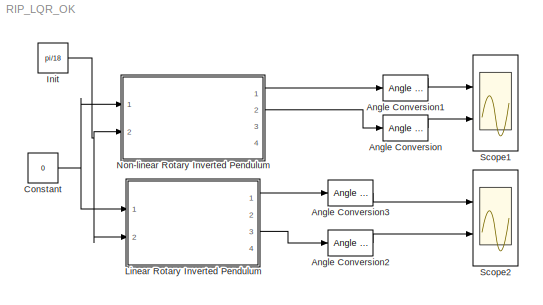
MODEL RIP_LQR_OK
KIND model
CONFIG StopFcn = plot(Data.time, Data.signals(1,1).values,'-r', 'LineWidth', 1.5)\nhold on;\nplot(Data.time, Data.signals(1,2).values,'-b', 'LineWidth',1.5)\ngrid;\nlegend('alpha','theta');\n\nylabel('alpha, theta [deg]');\n
BLOCK [Reference] Angle Conversion  REF=aerolibconvert2/Angle Conversion
  IU = rad
  OU = deg
  Ports = [1, 1]
  SID = 66
  SourceBlock = aerolibconvert2/Angle Conversion
  SourceType = Angle Conversion
BLOCK [Reference] Angle Conversion1  REF=aerolibconvert2/Angle Conversion
  IU = rad
  OU = deg
  Ports = [1, 1]
  SID = 67
  SourceBlock = aerolibconvert2/Angle Conversion
  SourceType = Angle Conversion
BLOCK [Reference] Angle Conversion2  REF=aerolibconvert2/Angle Conversion
  IU = rad
  OU = deg
  Ports = [1, 1]
  SID = 68
  SourceBlock = aerolibconvert2/Angle Conversion
  SourceType = Angle Conversion
BLOCK [Reference] Angle Conversion3  REF=aerolibconvert2/Angle Conversion
  IU = rad
  OU = deg
  Ports = [1, 1]
  SID = 69
  SourceBlock = aerolibconvert2/Angle Conversion
  SourceType = Angle Conversion
BLOCK [Constant] Constant
  SID = 53
  Value = 0
BLOCK [Constant] Init
  SID = 59
  Value = pi/18
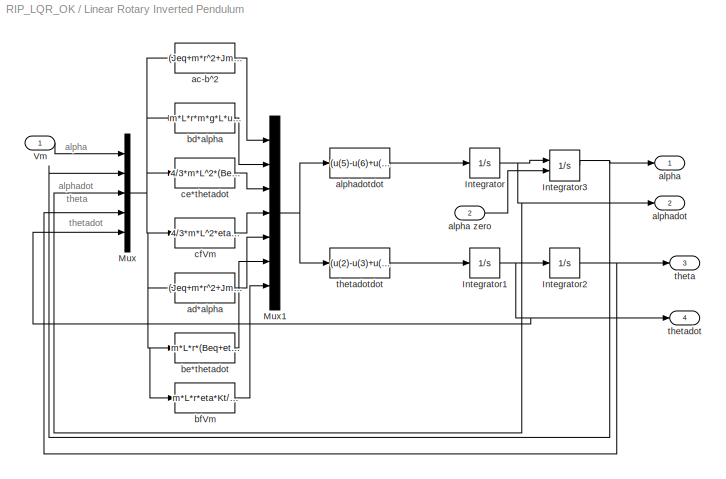
BLOCK [SubSystem] Linear Rotary Inverted Pendulum
  FunctionWithSeparateData = off
  MaskHideContents = off
  MinAlgLoopOccurrences = off
  Opaque = off
  Ports = [2, 4]
  PropExecContextOutsideSubsystem = off
  RTWSystemCode = Auto
  RequestExecContextInheritance = off
  SID = 28
BLOCK [Integrator] Linear Rotary Inverted Pendulum/Integrator
  Ports = [1, 1]
  SID = 39
BLOCK [Integrator] Linear Rotary Inverted Pendulum/Integrator1
  Ports = [1, 1]
  SID = 40
BLOCK [Integrator] Linear Rotary Inverted Pendulum/Integrator2
  Ports = [1, 1]
  SID = 41
BLOCK [Integrator] Linear Rotary Inverted Pendulum/Integrator3
  InitialConditionSource = external
  Ports = [2, 1]
  SID = 42
BLOCK [Mux] Linear Rotary Inverted Pendulum/Mux
  DisplayOption = bar
  Inputs = 5
  Ports = [5, 1]
  SID = 32
BLOCK [Mux] Linear Rotary Inverted Pendulum/Mux1
  DisplayOption = bar
  Inputs = 7
  Ports = [7, 1]
  SID = 43
BLOCK [Inport] Linear Rotary Inverted Pendulum/Vm
  IconDisplay = Port number
  SID = 29
BLOCK [Fcn] Linear Rotary Inverted Pendulum/ac-b^2
  Expr = (Jeq+m*r^2+Jm)*(4/3*m*L^2)-(m*L*r)^2
  SID = 31
BLOCK [Fcn] Linear Rotary Inverted Pendulum/ad*alpha
  Expr = (Jeq+m*r^2+Jm)*m*g*L*u(2)
  SID = 36
BLOCK [Outport] Linear Rotary Inverted Pendulum/alpha
  IconDisplay = Port number
  SID = 30
BLOCK [Inport] Linear Rotary Inverted Pendulum/alpha zero
  IconDisplay = Port number
  Port = 2
  SID = 58
BLOCK [Outport] Linear Rotary Inverted Pendulum/alphadot
  IconDisplay = Port number
  Port = 2
  SID = 46
BLOCK [Fcn] Linear Rotary Inverted Pendulum/alphadotdot
  Expr = (u(5)-u(6)+u(7))/u(1)
  SID = 44
BLOCK [Fcn] Linear Rotary Inverted Pendulum/bd*alpha
  Expr = m*L*r*m*g*L*u(2)
  SID = 33
BLOCK [Fcn] Linear Rotary Inverted Pendulum/be*thetadot
  Expr = m*L*r*(Beq+eta*Kt*Km/Rm)*u(5)
  SID = 37
BLOCK [Fcn] Linear Rotary Inverted Pendulum/bfVm
  Expr = m*L*r*eta*Kt/Rm*u(1)
  SID = 38
BLOCK [Fcn] Linear Rotary Inverted Pendulum/ce*thetadot
  Expr = 4/3*m*L^2*(Beq+eta*Kt*Km/Rm)*u(5)
  SID = 34
BLOCK [Fcn] Linear Rotary Inverted Pendulum/cfVm
  Expr = 4/3*m*L^2*eta*Kt/Rm*u(1)
  SID = 35
BLOCK [Outport] Linear Rotary Inverted Pendulum/theta
  IconDisplay = Port number
  Port = 3
  SID = 47
BLOCK [Outport] Linear Rotary Inverted Pendulum/thetadot
  IconDisplay = Port number
  Port = 4
  SID = 48
BLOCK [Fcn] Linear Rotary Inverted Pendulum/thetadotdot
  Expr = (u(2)-u(3)+u(4))/u(1)
  SID = 45
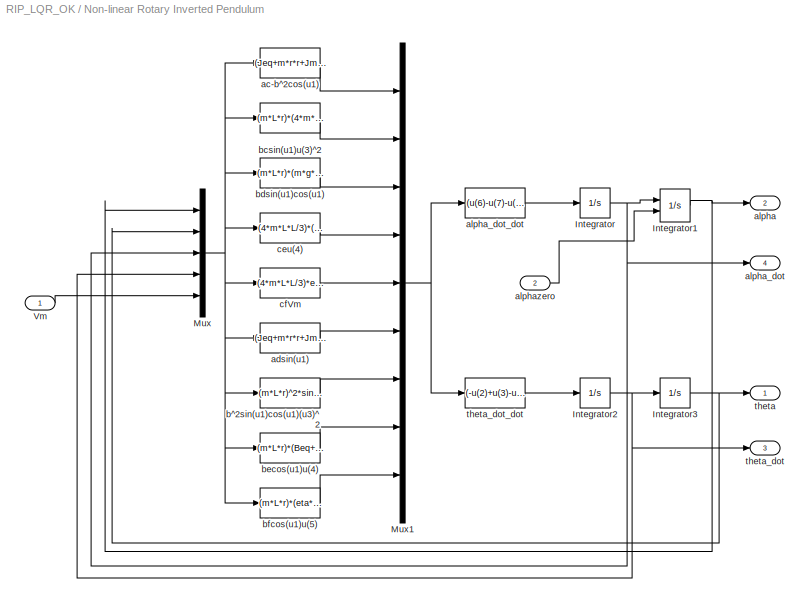
BLOCK [SubSystem] Non-linear Rotary Inverted Pendulum
  FunctionWithSeparateData = off
  MaskHideContents = off
  MinAlgLoopOccurrences = off
  Opaque = off
  Ports = [2, 4]
  PropExecContextOutsideSubsystem = off
  RTWSystemCode = Auto
  RequestExecContextInheritance = off
  SID = 1
BLOCK [Integrator] Non-linear Rotary Inverted Pendulum/Integrator
  LowerSaturationLimit = -pi/18
  Ports = [1, 1]
  SID = 3
  UpperSaturationLimit = pi/18
BLOCK [Integrator] Non-linear Rotary Inverted Pendulum/Integrator1
  InitialConditionSource = external
  LowerSaturationLimit = -pi/18
  Ports = [2, 1]
  SID = 4
  UpperSaturationLimit = pi/18
BLOCK [Integrator] Non-linear Rotary Inverted Pendulum/Integrator2
  Ports = [1, 1]
  SID = 5
BLOCK [Integrator] Non-linear Rotary Inverted Pendulum/Integrator3
  LowerSaturationLimit = -2
  Ports = [1, 1]
  SID = 6
  UpperSaturationLimit = 2
BLOCK [Mux] Non-linear Rotary Inverted Pendulum/Mux
  DisplayOption = bar
  Inputs = 5
  Ports = [5, 1]
  SID = 7
BLOCK [Mux] Non-linear Rotary Inverted Pendulum/Mux1
  DisplayOption = bar
  Inputs = 9
  Ports = [9, 1]
  SID = 8
BLOCK [Inport] Non-linear Rotary Inverted Pendulum/Vm
  IconDisplay = Port number
  SID = 2
BLOCK [Fcn] Non-linear Rotary Inverted Pendulum/ac-b^2cos(u1)
  Expr = (Jeq+m*r*r+Jm)*(4*m*L*L/3)-(m*L*r)^2*cos(u(1))
  SID = 9
BLOCK [Fcn] Non-linear Rotary Inverted Pendulum/adsin(u1)
  Expr = (Jeq+m*r*r+Jm)*(m*g*L)*sin(u(1))
  SID = 10
BLOCK [Outport] Non-linear Rotary Inverted Pendulum/alpha
  IconDisplay = Port number
  Port = 2
  SID = 21
BLOCK [Outport] Non-linear Rotary Inverted Pendulum/alpha_dot
  IconDisplay = Port number
  Port = 4
  SID = 23
BLOCK [Fcn] Non-linear Rotary Inverted Pendulum/alpha_dot_dot
  Expr = (u(6)-u(7)-u(8)+u(9))/u(1)
  SID = 11
BLOCK [Inport] Non-linear Rotary Inverted Pendulum/alphazero
  IconDisplay = Port number
  Port = 2
  SID = 57
BLOCK [Fcn] Non-linear Rotary Inverted Pendulum/b^2sin(u1)cos(u1)(u3)^2
  Expr = (m*L*r)^2*sin(u(1))*cos(u(1))*(u(3))^2
  SID = 12
BLOCK [Fcn] Non-linear Rotary Inverted Pendulum/bcsin(u1)u(3)^2
  Expr = (m*L*r)*(4*m*L*L/3)*sin(u(1))*u(3)*u(3)
  SID = 13
BLOCK [Fcn] Non-linear Rotary Inverted Pendulum/bdsin(u1)cos(u1)
  Expr = (m*L*r)*(m*g*L)*sin(u(1))*cos(u(1))
  SID = 14
BLOCK [Fcn] Non-linear Rotary Inverted Pendulum/becos(u1)u(4)
  Expr = (m*L*r)*(Beq+eta*Kt*Km/Rm)*cos(u(1))*u(4)
  SID = 15
BLOCK [Fcn] Non-linear Rotary Inverted Pendulum/bfcos(u1)u(5)
  Expr = (m*L*r)*(eta*Kt/Rm)*cos(u(1))*u(5)
  SID = 16
BLOCK [Fcn] Non-linear Rotary Inverted Pendulum/ceu(4)
  Expr = (4*m*L*L/3)*(Beq+eta*Kt*Km/Rm)*u(4)
  SID = 17
BLOCK [Fcn] Non-linear Rotary Inverted Pendulum/cfVm
  Expr = (4*m*L*L/3)*eta*Kt/Rm*u(5)
  SID = 18
BLOCK [Outport] Non-linear Rotary Inverted Pendulum/theta
  IconDisplay = Port number
  SID = 20
BLOCK [Outport] Non-linear Rotary Inverted Pendulum/theta_dot
  IconDisplay = Port number
  Port = 3
  SID = 22
BLOCK [Fcn] Non-linear Rotary Inverted Pendulum/theta_dot_dot
  Expr = (-u(2)+u(3)-u(4)+u(5))/u(1)
  SID = 19
BLOCK [Scope] Scope1
  DataFormat = StructureWithTime
  Floating = off
  LimitDataPoints = off
  NumInputPorts = 2
  Ports = [2]
  SID = 61
  SampleInput = on
  SampleTime = 0
  SaveName = Data
  SaveToWorkspace = on
  ShowLegends = off
  YMax = -3.5e+08~4.72
  YMin = -9e+08~4.7025
BLOCK [Scope] Scope2
  DataFormat = StructureWithTime
  Floating = off
  LimitDataPoints = off
  NumInputPorts = 2
  Ports = [2]
  SID = 70
  SampleInput = on
  SampleTime = 0
  SaveName = Data1
  SaveToWorkspace = on
  ShowLegends = off
  YMax = -3.5e+08~4.72
  YMin = -9e+08~4.7025
ANNOTATION Linear Rotary Inverted Pendulum: alpha
ANNOTATION Linear Rotary Inverted Pendulum: alphadot
ANNOTATION Linear Rotary Inverted Pendulum: theta
ANNOTATION Linear Rotary Inverted Pendulum: thetadot
LINE Angle Conversion1:1 -> Scope1:1
LINE Angle Conversion2:1 -> Scope2:2
LINE Angle Conversion3:1 -> Scope2:1
LINE Angle Conversion:1 -> Scope1:2
NET Constant:1 -> Linear Rotary Inverted Pendulum:1, Non-linear Rotary Inverted Pendulum:1
NET Init:1 -> Linear Rotary Inverted Pendulum:2, Non-linear Rotary Inverted Pendulum:2
NET Linear Rotary Inverted Pendulum/Integrator1:1 -> Linear Rotary Inverted Pendulum/Integrator2:1, Linear Rotary Inverted Pendulum/Mux:5, Linear Rotary Inverted Pendulum/thetadot:1
NET Linear Rotary Inverted Pendulum/Integrator2:1 -> Linear Rotary Inverted Pendulum/Mux:4, Linear Rotary Inverted Pendulum/theta:1
NET Linear Rotary Inverted Pendulum/Integrator3:1 -> Linear Rotary Inverted Pendulum/Mux:2, Linear Rotary Inverted Pendulum/alpha:1
NET Linear Rotary Inverted Pendulum/Integrator:1 -> Linear Rotary Inverted Pendulum/Integrator3:1, Linear Rotary Inverted Pendulum/Mux:3, Linear Rotary Inverted Pendulum/alphadot:1
NET Linear Rotary Inverted Pendulum/Mux1:1 -> Linear Rotary Inverted Pendulum/alphadotdot:1, Linear Rotary Inverted Pendulum/thetadotdot:1
NET Linear Rotary Inverted Pendulum/Mux:1 -> Linear Rotary Inverted Pendulum/ac-b^2:1, Linear Rotary Inverted Pendulum/ad*alpha:1, Linear Rotary Inverted Pendulum/bd*alpha:1, Linear Rotary Inverted Pendulum/be*thetadot:1, Linear Rotary Inverted Pendulum/bfVm:1, Linear Rotary Inverted Pendulum/ce*thetadot:1, Linear Rotary Inverted Pendulum/cfVm:1
LINE Linear Rotary Inverted Pendulum/Vm:1 -> Linear Rotary Inverted Pendulum/Mux:1
LINE Linear Rotary Inverted Pendulum/ac-b^2:1 -> Linear Rotary Inverted Pendulum/Mux1:1
LINE Linear Rotary Inverted Pendulum/ad*alpha:1 -> Linear Rotary Inverted Pendulum/Mux1:5
LINE Linear Rotary Inverted Pendulum/alpha zero:1 -> Linear Rotary Inverted Pendulum/Integrator3:2
LINE Linear Rotary Inverted Pendulum/alphadotdot:1 -> Linear Rotary Inverted Pendulum/Integrator:1
LINE Linear Rotary Inverted Pendulum/bd*alpha:1 -> Linear Rotary Inverted Pendulum/Mux1:2
LINE Linear Rotary Inverted Pendulum/be*thetadot:1 -> Linear Rotary Inverted Pendulum/Mux1:6
LINE Linear Rotary Inverted Pendulum/bfVm:1 -> Linear Rotary Inverted Pendulum/Mux1:7
LINE Linear Rotary Inverted Pendulum/ce*thetadot:1 -> Linear Rotary Inverted Pendulum/Mux1:3
LINE Linear Rotary Inverted Pendulum/cfVm:1 -> Linear Rotary Inverted Pendulum/Mux1:4
LINE Linear Rotary Inverted Pendulum/thetadotdot:1 -> Linear Rotary Inverted Pendulum/Integrator1:1
LINE Linear Rotary Inverted Pendulum:1 -> Angle Conversion3:1
LINE Linear Rotary Inverted Pendulum:3 -> Angle Conversion2:1
NET Non-linear Rotary Inverted Pendulum/Integrator1:1 -> Non-linear Rotary Inverted Pendulum/Mux:1, Non-linear Rotary Inverted Pendulum/alpha:1
NET Non-linear Rotary Inverted Pendulum/Integrator2:1 -> Non-linear Rotary Inverted Pendulum/Integrator3:1, Non-linear Rotary Inverted Pendulum/Mux:4, Non-linear Rotary Inverted Pendulum/theta_dot:1
NET Non-linear Rotary Inverted Pendulum/Integrator3:1 -> Non-linear Rotary Inverted Pendulum/Mux:2, Non-linear Rotary Inverted Pendulum/theta:1
NET Non-linear Rotary Inverted Pendulum/Integrator:1 -> Non-linear Rotary Inverted Pendulum/Integrator1:1, Non-linear Rotary Inverted Pendulum/Mux:3, Non-linear Rotary Inverted Pendulum/alpha_dot:1
NET Non-linear Rotary Inverted Pendulum/Mux1:1 -> Non-linear Rotary Inverted Pendulum/alpha_dot_dot:1, Non-linear Rotary Inverted Pendulum/theta_dot_dot:1
NET Non-linear Rotary Inverted Pendulum/Mux:1 -> Non-linear Rotary Inverted Pendulum/ac-b^2cos(u1):1, Non-linear Rotary Inverted Pendulum/adsin(u1):1, Non-linear Rotary Inverted Pendulum/b^2sin(u1)cos(u1)(u3)^2:1, Non-linear Rotary Inverted Pendulum/bcsin(u1)u(3)^2:1, Non-linear Rotary Inverted Pendulum/bdsin(u1)cos(u1):1, Non-linear Rotary Inverted Pendulum/becos(u1)u(4):1, Non-linear Rotary Inverted Pendulum/bfcos(u1)u(5):1, Non-linear Rotary Inverted Pendulum/ceu(4):1, Non-linear Rotary Inverted Pendulum/cfVm:1
LINE Non-linear Rotary Inverted Pendulum/Vm:1 -> Non-linear Rotary Inverted Pendulum/Mux:5
LINE Non-linear Rotary Inverted Pendulum/ac-b^2cos(u1):1 -> Non-linear Rotary Inverted Pendulum/Mux1:1
LINE Non-linear Rotary Inverted Pendulum/adsin(u1):1 -> Non-linear Rotary Inverted Pendulum/Mux1:6
LINE Non-linear Rotary Inverted Pendulum/alpha_dot_dot:1 -> Non-linear Rotary Inverted Pendulum/Integrator:1
LINE Non-linear Rotary Inverted Pendulum/alphazero:1 -> Non-linear Rotary Inverted Pendulum/Integrator1:2
LINE Non-linear Rotary Inverted Pendulum/b^2sin(u1)cos(u1)(u3)^2:1 -> Non-linear Rotary Inverted Pendulum/Mux1:7
LINE Non-linear Rotary Inverted Pendulum/bcsin(u1)u(3)^2:1 -> Non-linear Rotary Inverted Pendulum/Mux1:2
LINE Non-linear Rotary Inverted Pendulum/bdsin(u1)cos(u1):1 -> Non-linear Rotary Inverted Pendulum/Mux1:3
LINE Non-linear Rotary Inverted Pendulum/becos(u1)u(4):1 -> Non-linear Rotary Inverted Pendulum/Mux1:8
LINE Non-linear Rotary Inverted Pendulum/bfcos(u1)u(5):1 -> Non-linear Rotary Inverted Pendulum/Mux1:9
LINE Non-linear Rotary Inverted Pendulum/ceu(4):1 -> Non-linear Rotary Inverted Pendulum/Mux1:4
LINE Non-linear Rotary Inverted Pendulum/cfVm:1 -> Non-linear Rotary Inverted Pendulum/Mux1:5
LINE Non-linear Rotary Inverted Pendulum/theta_dot_dot:1 -> Non-linear Rotary Inverted Pendulum/Integrator2:1
LINE Non-linear Rotary Inverted Pendulum:1 -> Angle Conversion1:1
LINE Non-linear Rotary Inverted Pendulum:2 -> Angle Conversion:1
note: NET lines group one-source signal fan-out (src -> all destinations, sorted); 1:1 wires keep LINE
